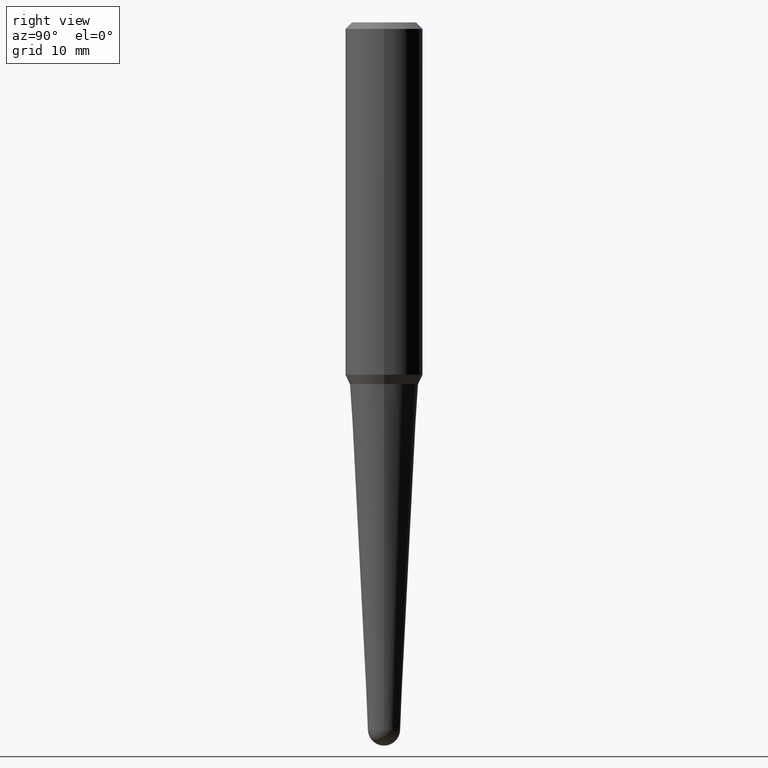
[diagram: clean part render]
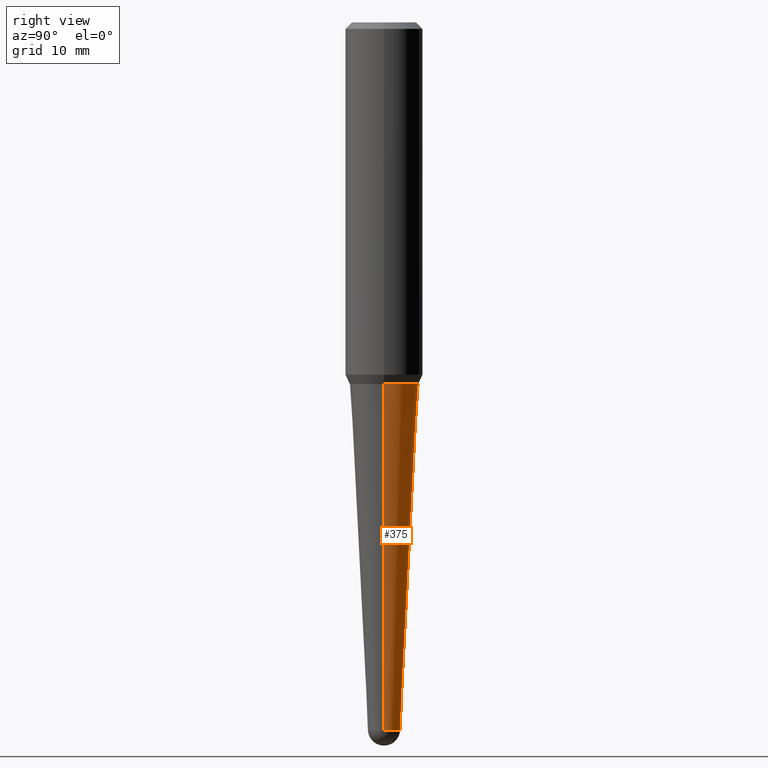
[diagram: same view with one face highlighted and labeled with its STEP entity id]
A machine part, right view. The second image highlights one B-rep face of the part: STEP entity #375.
In plain terms, the highlighted conical surface has half-angle 3 deg.
Its self-contained STEP definition (entity closure, byte-faithful):
#5 = CARTESIAN_POINT ( 'NONE',  ( 5.446219753391475755E-16, 0.07799296666432065095, -3.425987438182573896 ) ) ;
#6 = EDGE_CURVE ( 'NONE', #424, #311, #48, .T. ) ;
#23 = VERTEX_POINT ( 'NONE', #306 ) ;
#30 = CARTESIAN_POINT ( 'NONE',  ( -0.1658277464057546224, -4.931815337014735557E-15, -1.750000000000000000 ) ) ;
#41 = DIRECTION ( 'NONE',  ( -0.05233595624294384158, 3.858565720288028779E-15, 0.9986295347545738332 ) ) ;
#42 = AXIS2_PLACEMENT_3D ( 'NONE', #248, #240, #398 ) ;
#48 = CIRCLE ( 'NONE', #297, 0.07799296666433265524 ) ;
#50 = EDGE_CURVE ( 'NONE', #311, #23, #138, .T. ) ;
#57 = DIRECTION ( 'NONE',  ( -2.445468806185136597E-29, 3.491481338843145583E-15, 1.000000000000000000 ) ) ;
#58 = DIRECTION ( 'NONE',  ( 1.000000000000000000, -6.982962677686263555E-15, 0.000000000000000000 ) ) ;
#77 = CARTESIAN_POINT ( 'NONE',  ( -0.07799296666433265524, -1.140759784848827963E-14, -3.425987438182573896 ) ) ;
#84 = VECTOR ( 'NONE', #354, 39.37007874015748854 ) ;
#85 = DIRECTION ( 'NONE',  ( -2.445468806185136597E-29, 3.491481338843145583E-15, 1.000000000000000000 ) ) ;
#94 = CARTESIAN_POINT ( 'NONE',  ( 0.1658277464057546224, -7.268061307051711819E-15, -1.750000000000000000 ) ) ;
#98 = VECTOR ( 'NONE', #41, 39.37007874015748854 ) ;
#104 = EDGE_LOOP ( 'NONE', ( #265, #184, #107, #198, #352 ) ) ;
#107 = ORIENTED_EDGE ( 'NONE', *, *, #221, .F. ) ;
#121 = CARTESIAN_POINT ( 'NONE',  ( 0.07799296666433265524, -1.250639318286455540E-14, -3.425987438182573896 ) ) ;
#138 = CIRCLE ( 'NONE', #143, 0.07799296666433265524 ) ;
#143 = AXIS2_PLACEMENT_3D ( 'NONE', #233, #320, #58 ) ;
#184 = ORIENTED_EDGE ( 'NONE', *, *, #431, .T. ) ;
#198 = ORIENTED_EDGE ( 'NONE', *, *, #205, .F. ) ;
#201 = CIRCLE ( 'NONE', #340, 0.1658277464057546502 ) ;
#205 = EDGE_CURVE ( 'NONE', #424, #357, #227, .T. ) ;
#221 = EDGE_CURVE ( 'NONE', #357, #381, #201, .T. ) ;
#227 = LINE ( 'NONE', #121, #84 ) ;
#233 = CARTESIAN_POINT ( 'NONE',  ( 8.378145410457613452E-29, -1.196177120752549174E-14, -3.425987438182573896 ) ) ;
#240 = DIRECTION ( 'NONE',  ( -2.445468806185136597E-29, 3.491481338843145583E-15, 1.000000000000000000 ) ) ;
#248 = CARTESIAN_POINT ( 'NONE',  ( 8.378145410457613452E-29, -1.196177120752549174E-14, -3.425987438182573896 ) ) ;
#253 = LINE ( 'NONE', #77, #98 ) ;
#265 = ORIENTED_EDGE ( 'NONE', *, *, #50, .T. ) ;
#285 = CARTESIAN_POINT ( 'NONE',  ( 4.279570410823988484E-29, -6.110092342975504671E-15, -1.750000000000000000 ) ) ;
#297 = AXIS2_PLACEMENT_3D ( 'NONE', #327, #85, #349 ) ;
#306 = CARTESIAN_POINT ( 'NONE',  ( -0.07799296666433265524, -8.169706592751506412E-15, -3.425987438182573896 ) ) ;
#311 = VERTEX_POINT ( 'NONE', #5 ) ;
#312 = FACE_OUTER_BOUND ( 'NONE', #104, .T. ) ;
#320 = DIRECTION ( 'NONE',  ( -2.445468806185136597E-29, 3.491481338843145583E-15, 1.000000000000000000 ) ) ;
#327 = CARTESIAN_POINT ( 'NONE',  ( 8.378145410457613452E-29, -1.196177120752549174E-14, -3.425987438182573896 ) ) ;
#333 = CARTESIAN_POINT ( 'NONE',  ( 0.07799296666433265524, -9.887227244958132819E-15, -3.425987438182573896 ) ) ;
#340 = AXIS2_PLACEMENT_3D ( 'NONE', #285, #57, #423 ) ;
#349 = DIRECTION ( 'NONE',  ( 1.000000000000000000, -6.982962677686263555E-15, 0.000000000000000000 ) ) ;
#352 = ORIENTED_EDGE ( 'NONE', *, *, #6, .T. ) ;
#354 = DIRECTION ( 'NONE',  ( 0.05233595624294384158, 3.121236355867708811E-15, 0.9986295347545738332 ) ) ;
#357 = VERTEX_POINT ( 'NONE', #94 ) ;
#370 = CONICAL_SURFACE ( 'NONE', #42, 0.07799296666433265524, 0.05235987755982988989 ) ;
#375 = ADVANCED_FACE ( 'NONE', ( #312 ), #370, .T. ) ;
#381 = VERTEX_POINT ( 'NONE', #30 ) ;
#398 = DIRECTION ( 'NONE',  ( 1.000000000000000000, -6.982962677686263555E-15, 0.000000000000000000 ) ) ;
#423 = DIRECTION ( 'NONE',  ( 1.000000000000000000, -6.982962677686270655E-15, 0.000000000000000000 ) ) ;
#424 = VERTEX_POINT ( 'NONE', #333 ) ;
#431 = EDGE_CURVE ( 'NONE', #23, #381, #253, .T. ) ;